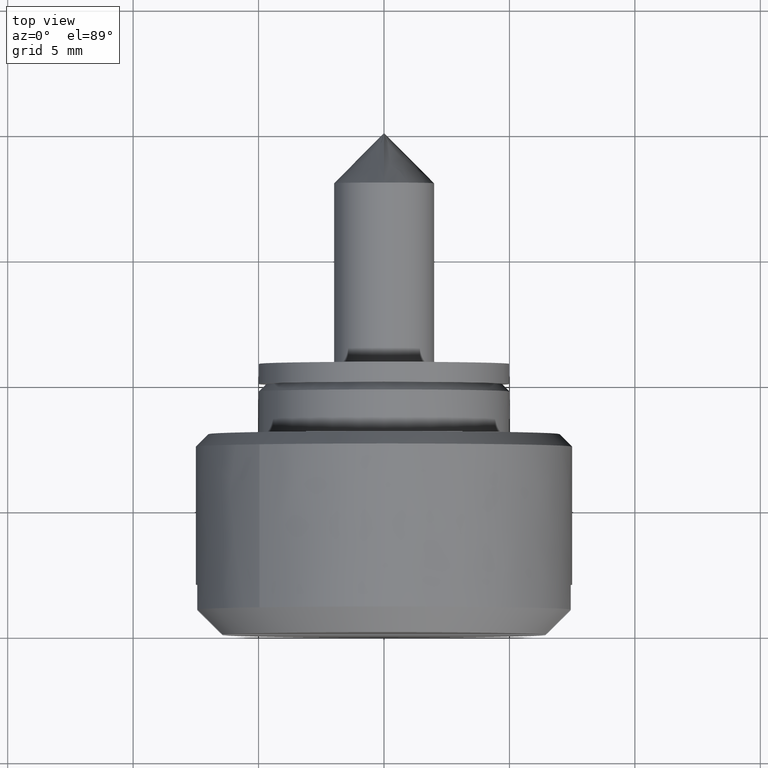
[diagram: clean part render]
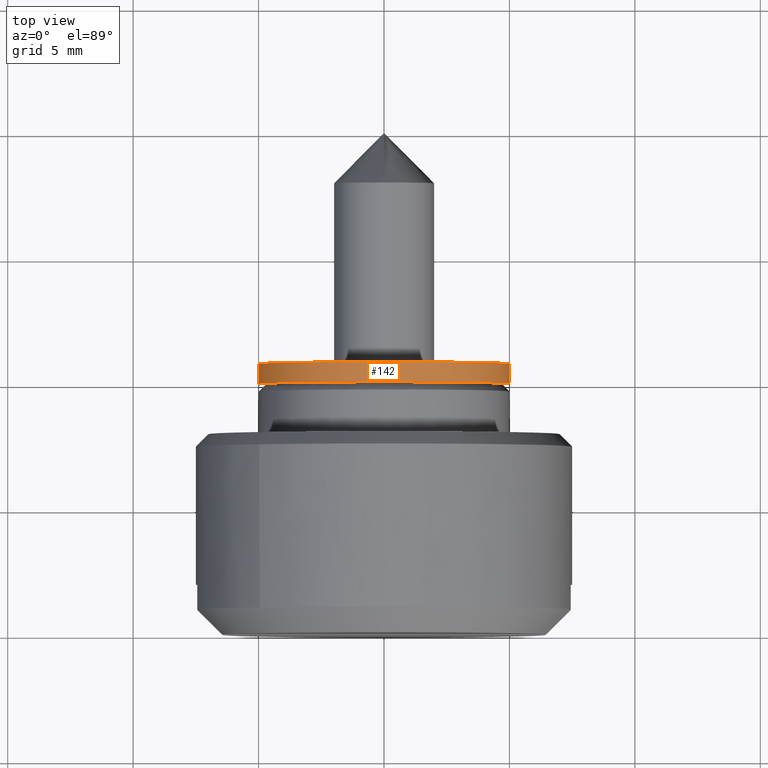
[diagram: same view with one face highlighted and labeled with its STEP entity id]
A machine part, top view. The second image highlights one B-rep face of the part: STEP entity #142.
In plain terms, the highlighted face is a freeform B-spline surface patch.
Its self-contained STEP definition (entity closure, byte-faithful):
#44=CARTESIAN_POINT('',(0.820000000000024,-4.984586668665638,0.392295478639228));
#45=CARTESIAN_POINT('',(0.820000000000024,-4.592291190026410,5.376882147304866));
#46=CARTESIAN_POINT('',(0.820000000000024,0.392295478639228,4.984586668665638));
#47=CARTESIAN_POINT('',(0.820000000000024,5.376882147304866,4.592291190026410));
#48=CARTESIAN_POINT('',(0.820000000000024,4.984586668665638,-0.392295478639228));
#49=CARTESIAN_POINT('',(-0.020500000000001,-4.984586668665638,0.392295478639228));
#50=CARTESIAN_POINT('',(-0.020500000000001,-4.592291190026410,5.376882147304866));
#51=CARTESIAN_POINT('',(-0.020500000000001,0.392295478639228,4.984586668665638));
#52=CARTESIAN_POINT('',(-0.020500000000001,5.376882147304866,4.592291190026410));
#53=CARTESIAN_POINT('',(-0.020500000000001,4.984586668665638,-0.392295478639228));
#61=(BOUNDED_SURFACE()B_SPLINE_SURFACE(2,1,((#44,#49),(#45,#50),(#46,#51),(#47,#52),(#48,#53)),.UNSPECIFIED.,.F.,.F.,.U.)B_SPLINE_SURFACE_WITH_KNOTS((3,2,3),(2,2),(0.0,8.284271247461899,16.568542494923800),(0.0,1.0),.UNSPECIFIED.)GEOMETRIC_REPRESENTATION_ITEM()RATIONAL_B_SPLINE_SURFACE(((1.0,1.0),(0.707106781186548,0.707106781186548),(1.0,1.0),(0.707106781186548,0.707106781186548),(1.0,1.0)))REPRESENTATION_ITEM('')SURFACE());
#62=CARTESIAN_POINT('',(0.0,0.0,5.0));
#63=VERTEX_POINT('',#62);
#64=CARTESIAN_POINT('',(-1.330741E-013,-4.984587028064983,0.392290911984086));
#65=VERTEX_POINT('',#64);
#66=CARTESIAN_POINT('',(0.0,0.0,5.0));
#67=CARTESIAN_POINT('',(0.0,-4.621956705812124,5.0));
#68=CARTESIAN_POINT('',(-1.330741E-013,-4.984587028064983,0.392290911984086));
#76=(BOUNDED_CURVE()B_SPLINE_CURVE(2,(#66,#67,#68),.UNSPECIFIED.,.F.,.U.)B_SPLINE_CURVE_WITH_KNOTS((3,3),(0.0,0.236331457684225),.UNSPECIFIED.)CURVE()GEOMETRIC_REPRESENTATION_ITEM()RATIONAL_B_SPLINE_CURVE((1.0,0.723120474607968,0.969723683926459))REPRESENTATION_ITEM(''));
#77=EDGE_CURVE('',#63,#65,#76,.T.);
#78=ORIENTED_EDGE('',*,*,#77,.T.);
#79=CARTESIAN_POINT('',(0.800000000000023,-4.984587023627478,0.392290968369244));
#80=VERTEX_POINT('',#79);
#81=CARTESIAN_POINT('',(0.800000000000023,-4.984587023627478,0.392290968369244));
#82=CARTESIAN_POINT('',(-1.330741E-013,-4.984587028064983,0.392290911984086));
#83=QUASI_UNIFORM_CURVE('',1,(#81,#82),.UNSPECIFIED.,.F.,.U.);
#84=EDGE_CURVE('',#80,#65,#83,.T.);
#85=ORIENTED_EDGE('',*,*,#84,.F.);
#86=CARTESIAN_POINT('',(0.800000000000023,0.0,5.0));
#87=VERTEX_POINT('',#86);
#88=CARTESIAN_POINT('',(0.800000000000023,0.0,5.0));
#89=CARTESIAN_POINT('',(0.800000000000023,-4.621956653367342,5.0));
#90=CARTESIAN_POINT('',(0.800000000000023,-4.984587023627478,0.392290968369244));
#98=(BOUNDED_CURVE()B_SPLINE_CURVE(2,(#88,#89,#90),.UNSPECIFIED.,.F.,.U.)B_SPLINE_CURVE_WITH_KNOTS((3,3),(0.0,0.236331455745088),.UNSPECIFIED.)CURVE()GEOMETRIC_REPRESENTATION_ITEM()RATIONAL_B_SPLINE_CURVE((1.0,0.723120476879809,0.969723679879621))REPRESENTATION_ITEM(''));
#99=EDGE_CURVE('',#87,#80,#98,.T.);
#100=ORIENTED_EDGE('',*,*,#99,.F.);
#101=CARTESIAN_POINT('',(0.800000000000023,4.984587023627478,-0.392290968369244));
#102=VERTEX_POINT('',#101);
#103=CARTESIAN_POINT('',(0.800000000000023,4.984587023627478,-0.392290968369244));
#104=CARTESIAN_POINT('',(0.800000000000023,5.0,-0.196448269438189));
#105=CARTESIAN_POINT('',(0.800000000000023,5.0,0.0));
#106=CARTESIAN_POINT('',(0.800000000000023,5.000000000000001,5.000000000000001));
#107=CARTESIAN_POINT('',(0.800000000000023,0.0,5.0));
#115=(BOUNDED_CURVE()B_SPLINE_CURVE(2,(#103,#104,#105,#106,#107),.UNSPECIFIED.,.F.,.U.)B_SPLINE_CURVE_WITH_KNOTS((3,2,3),(0.736331455745088,0.750000000000000,1.0),.UNSPECIFIED.)CURVE()GEOMETRIC_REPRESENTATION_ITEM()RATIONAL_B_SPLINE_CURVE((0.969723679879621,0.983986304306739,1.0,0.707106781186548,1.0))REPRESENTATION_ITEM(''));
#116=EDGE_CURVE('',#102,#87,#115,.T.);
#117=ORIENTED_EDGE('',*,*,#116,.F.);
#118=CARTESIAN_POINT('',(-1.332615E-013,4.984587028064983,-0.392290911984086));
#119=VERTEX_POINT('',#118);
#120=CARTESIAN_POINT('',(0.800000000000023,4.984587023627478,-0.392290968369244));
#121=CARTESIAN_POINT('',(-1.332615E-013,4.984587028064983,-0.392290911984086));
#122=QUASI_UNIFORM_CURVE('',1,(#120,#121),.UNSPECIFIED.,.F.,.U.);
#123=EDGE_CURVE('',#102,#119,#122,.T.);
#124=ORIENTED_EDGE('',*,*,#123,.T.);
#125=CARTESIAN_POINT('',(-1.332615E-013,4.984587028064983,-0.392290911984086));
#126=CARTESIAN_POINT('',(0.0,4.999999999999999,-0.196448241114783));
#127=CARTESIAN_POINT('',(0.0,5.0,0.0));
#128=CARTESIAN_POINT('',(0.0,5.000000000000001,5.000000000000001));
#129=CARTESIAN_POINT('',(0.0,0.0,5.0));
#137=(BOUNDED_CURVE()B_SPLINE_CURVE(2,(#125,#126,#127,#128,#129),.UNSPECIFIED.,.F.,.U.)B_SPLINE_CURVE_WITH_KNOTS((3,2,3),(0.736331457684225,0.750000000000000,1.0),.UNSPECIFIED.)CURVE()GEOMETRIC_REPRESENTATION_ITEM()RATIONAL_B_SPLINE_CURVE((0.969723683926459,0.983986306578579,1.0,0.707106781186548,1.0))REPRESENTATION_ITEM(''));
#138=EDGE_CURVE('',#119,#63,#137,.T.);
#139=ORIENTED_EDGE('',*,*,#138,.T.);
#140=EDGE_LOOP('',(#78,#85,#100,#117,#124,#139));
#141=FACE_OUTER_BOUND('',#140,.T.);
#142=ADVANCED_FACE('',(#141),#61,.T.);